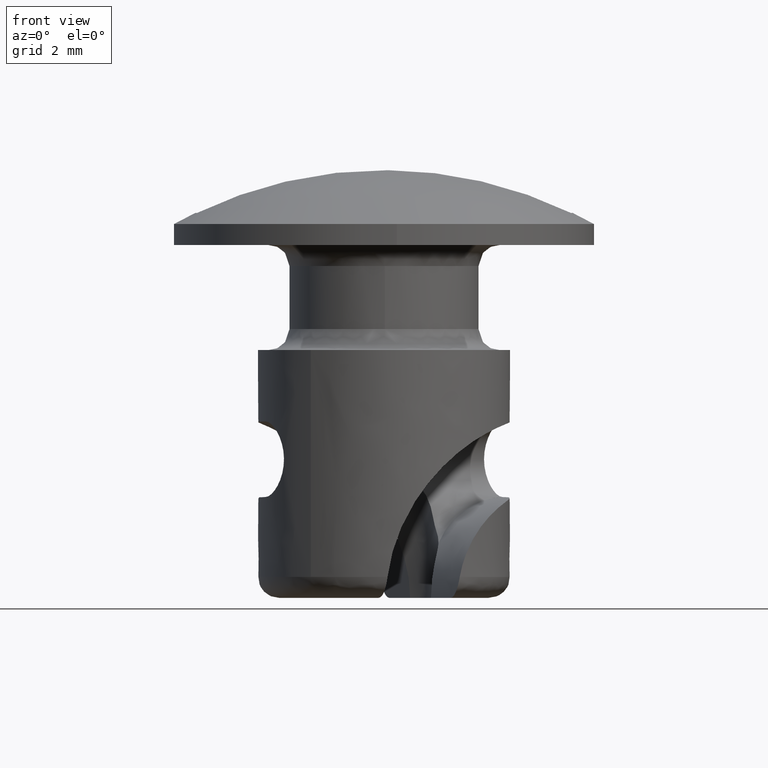
[diagram: clean part render]
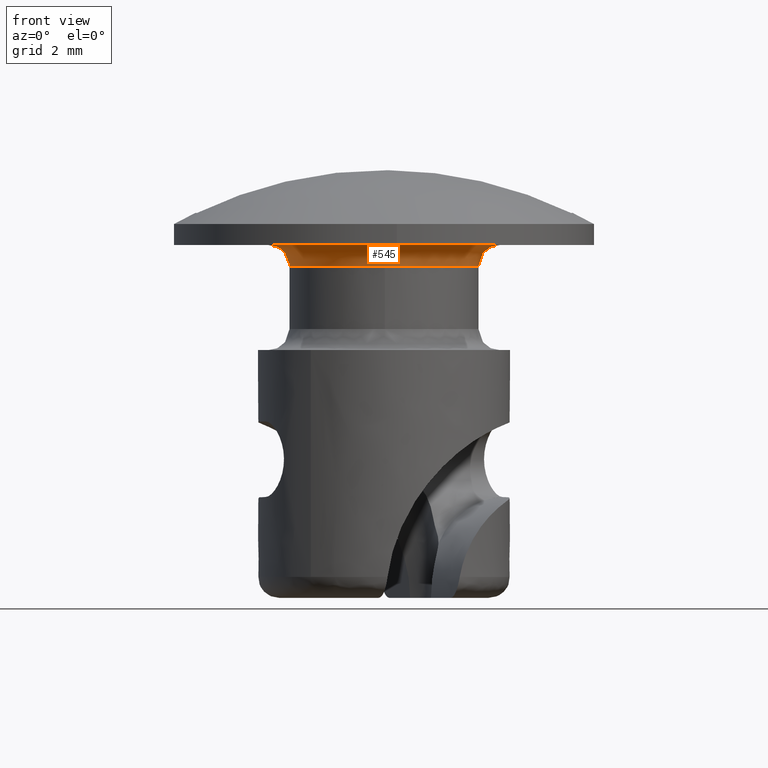
[diagram: same view with one face highlighted and labeled with its STEP entity id]
A machine part, front view. The second image highlights one B-rep face of the part: STEP entity #545.
In plain terms, the highlighted face is a freeform B-spline surface patch.
Its self-contained STEP definition (entity closure, byte-faithful):
#348=CARTESIAN_POINT('',(-2.749782871351383,-0.034556609716116,5.452264E-014));
#349=VERTEX_POINT('',#348);
#363=CARTESIAN_POINT('',(2.750000000000000,0.0,0.0));
#364=VERTEX_POINT('',#363);
#365=CARTESIAN_POINT('',(-2.749782871351383,-0.034556609716116,5.452264E-014));
#366=CARTESIAN_POINT('',(-2.747420056101725,-0.225014174416860,5.071558E-014));
#367=CARTESIAN_POINT('',(-2.714651134649410,-0.504714472653157,4.512334E-014));
#368=CARTESIAN_POINT('',(-2.619155079379021,-0.850742891527095,3.820252E-014));
#369=CARTESIAN_POINT('',(-2.522132480036099,-1.107797745783278,3.306008E-014));
#370=CARTESIAN_POINT('',(-2.379635880185712,-1.394163242664831,2.732974E-014));
#371=CARTESIAN_POINT('',(-2.197522764961495,-1.664307833893839,2.192187E-014));
#372=CARTESIAN_POINT('',(-1.970268977859897,-1.927459384204439,1.665178E-014));
#373=CARTESIAN_POINT('',(-1.721976810785145,-2.155256687721138,1.208739E-014));
#374=CARTESIAN_POINT('',(-1.389435642238185,-2.385140107442391,7.477930E-015));
#375=CARTESIAN_POINT('',(-1.015811813388871,-2.567995209086606,3.805261E-015));
#376=CARTESIAN_POINT('',(-0.634271866243625,-2.684432764546480,1.468380E-015));
#377=CARTESIAN_POINT('',(-0.229978288122025,-2.750424995330303,8.960720E-017));
#378=CARTESIAN_POINT('',(0.158035508685496,-2.756286744665119,1.254827E-016));
#379=CARTESIAN_POINT('',(0.519467587515986,-2.706196495024674,9.457377E-017));
#380=CARTESIAN_POINT('',(0.802184062647177,-2.634703183979466,8.868052E-017));
#381=CARTESIAN_POINT('',(1.066346407864200,-2.540544070734931,7.550780E-017));
#382=CARTESIAN_POINT('',(1.369617344435729,-2.394294058045817,6.198688E-017));
#383=CARTESIAN_POINT('',(1.646201866888808,-2.211577183916244,4.965283E-017));
#384=CARTESIAN_POINT('',(1.893701368759696,-2.000530306870573,3.859795E-017));
#385=CARTESIAN_POINT('',(2.134348779510044,-1.749345429555360,2.783767E-017));
#386=CARTESIAN_POINT('',(2.369731514136269,-1.419847306109899,1.728913E-017));
#387=CARTESIAN_POINT('',(2.557488799610005,-1.036337379110098,8.841278E-018));
#388=CARTESIAN_POINT('',(2.674571243514839,-0.672927820079381,3.538635E-018));
#389=CARTESIAN_POINT('',(2.736975959346938,-0.330522818586217,6.708296E-019));
#390=CARTESIAN_POINT('',(2.750001884729610,-0.106439712331004,2.962619E-020));
#391=CARTESIAN_POINT('',(2.750000000000000,0.0,0.0));
#392=B_SPLINE_CURVE_WITH_KNOTS('',3,(#365,#366,#367,#368,#369,#370,#371,#372,#373,#374,#375,#376,#377,#378,#379,#380,#381,#382,#383,#384,#385,#386,#387,#388,#389,#390,#391),.UNSPECIFIED.,.F.,.U.,(4,1,1,1,1,1,1,1,1,1,1,1,1,1,1,1,1,1,1,1,1,1,1,1,4),(0.000000011276605,0.571408536833601,0.840310488371967,1.075602872460784,1.394923563526935,1.798275021028522,2.050370947917886,2.436917991782169,2.806658511900636,3.260427450558669,3.680590022198632,3.999909486152245,4.487284464008011,4.840213666349777,5.092314414872952,5.361215777219254,5.680536062079659,6.100692798318059,6.352788645974297,6.655303682886378,7.142686921309122,7.562844898225489,7.932584653592780,8.285516049412955,8.604835668678740),.UNSPECIFIED.);
#393=EDGE_CURVE('',#349,#364,#392,.T.);
#395=CARTESIAN_POINT('',(2.749782871351383,0.034556609716116,2.739134E-014));
#396=VERTEX_POINT('',#395);
#397=CARTESIAN_POINT('',(2.750000000000000,0.0,0.0));
#398=CARTESIAN_POINT('',(2.749999999895693,0.017278986996147,1.369567E-014));
#399=CARTESIAN_POINT('',(2.749782871351382,0.034556609716116,2.739134E-014));
#407=(BOUNDED_CURVE()B_SPLINE_CURVE(2,(#397,#398,#399),.UNSPECIFIED.,.F.,.U.)B_SPLINE_CURVE_WITH_KNOTS((3,3),(0.500000000000000,0.502215704080799),.UNSPECIFIED.)CURVE()GEOMETRIC_REPRESENTATION_ITEM()RATIONAL_B_SPLINE_CURVE((1.0,0.997404141199346,0.994854295638195))REPRESENTATION_ITEM(''));
#408=EDGE_CURVE('',#364,#396,#407,.T.);
#443=CARTESIAN_POINT('',(2.251032571150834,0.028288798632427,-0.534768554556568));
#444=CARTESIAN_POINT('',(2.279321369783262,-2.222743772518409,-0.534768554556568));
#445=CARTESIAN_POINT('',(0.028288798632427,-2.251032571150834,-0.534768554556568));
#446=CARTESIAN_POINT('',(-2.222743772518409,-2.279321369783262,-0.534768554556568));
#447=CARTESIAN_POINT('',(-2.251032571150834,-0.028288798632427,-0.534768554556568));
#448=CARTESIAN_POINT('',(2.211056838643848,0.027786422317856,0.038768587008932));
#449=CARTESIAN_POINT('',(2.238843260961703,-2.183270416325992,0.038768587008932));
#450=CARTESIAN_POINT('',(0.027786422317856,-2.211056838643848,0.038768587008932));
#451=CARTESIAN_POINT('',(-2.183270416325992,-2.238843260961704,0.038768587008932));
#452=CARTESIAN_POINT('',(-2.211056838643848,-0.027786422317856,0.038768587008932));
#453=CARTESIAN_POINT('',(2.784548695000571,0.034993512899187,-0.001210318234063));
#454=CARTESIAN_POINT('',(2.819542207899759,-2.749555182101385,-0.001210318234063));
#455=CARTESIAN_POINT('',(0.034993512899188,-2.784548695000571,-0.001210318234063));
#456=CARTESIAN_POINT('',(-2.749555182101383,-2.819542207899759,-0.001210318234063));
#457=CARTESIAN_POINT('',(-2.784548695000571,-0.034993512899188,-0.001210318234063));
#465=(BOUNDED_SURFACE()B_SPLINE_SURFACE(2,2,((#443,#448,#453),(#444,#449,#454),(#445,#450,#455),(#446,#451,#456),(#447,#452,#457)),.UNSPECIFIED.,.F.,.F.,.U.)B_SPLINE_SURFACE_WITH_KNOTS((3,2,3),(3,3),(0.0,4.613955636771016,9.227911273542032),(0.0,0.911186972831271),.UNSPECIFIED.)GEOMETRIC_REPRESENTATION_ITEM()RATIONAL_B_SPLINE_SURFACE(((0.910479795090997,0.597479572841838,0.910479806786608),(0.643806437242182,0.422481857576905,0.643806445512228),(0.910479795090997,0.597479572841838,0.910479806786608),(0.643806437242182,0.422481857576905,0.643806445512228),(0.910479795090997,0.597479572841838,0.910479806786608)))REPRESENTATION_ITEM('')SURFACE());
#466=CARTESIAN_POINT('',(2.249822349458503,0.028273589744125,-0.499999999954499));
#467=VERTEX_POINT('',#466);
#468=CARTESIAN_POINT('',(2.250000000000000,0.0,-0.499999999999945));
#469=VERTEX_POINT('',#468);
#470=CARTESIAN_POINT('',(2.249822349458504,0.028273589744125,-0.499999999954499));
#471=CARTESIAN_POINT('',(2.250000000000000,0.014137352985043,-0.499999999977222));
#472=CARTESIAN_POINT('',(2.250000000000000,0.0,-0.499999999999945));
#480=(BOUNDED_CURVE()B_SPLINE_CURVE(2,(#470,#471,#472),.UNSPECIFIED.,.F.,.U.)B_SPLINE_CURVE_WITH_KNOTS((3,3),(0.497784295921214,0.500000000000000),.UNSPECIFIED.)CURVE()GEOMETRIC_REPRESENTATION_ITEM()RATIONAL_B_SPLINE_CURVE((0.994854295642828,0.997404141201705,1.0))REPRESENTATION_ITEM(''));
#481=EDGE_CURVE('',#467,#469,#480,.T.);
#482=ORIENTED_EDGE('',*,*,#481,.F.);
#483=CARTESIAN_POINT('',(2.249822349458504,0.028273589744125,-0.499999999954499));
#484=CARTESIAN_POINT('',(2.249822349503739,0.028273589761165,-2.085893E-010));
#485=CARTESIAN_POINT('',(2.749782871351383,0.034556609716116,2.739134E-014));
#493=(BOUNDED_CURVE()B_SPLINE_CURVE(2,(#483,#484,#485),.UNSPECIFIED.,.F.,.U.)B_SPLINE_CURVE_WITH_KNOTS((3,3),(-1.725134643188606,-0.274865357146085),.UNSPECIFIED.)CURVE()GEOMETRIC_REPRESENTATION_ITEM()RATIONAL_B_SPLINE_CURVE((0.883342149619803,0.624617224220545,0.883342149500387))REPRESENTATION_ITEM(''));
#494=EDGE_CURVE('',#467,#396,#493,.T.);
#495=ORIENTED_EDGE('',*,*,#494,.T.);
#496=ORIENTED_EDGE('',*,*,#408,.F.);
#497=ORIENTED_EDGE('',*,*,#393,.F.);
#498=CARTESIAN_POINT('',(-2.249822349458503,-0.028273589744126,-0.499999999954499));
#499=VERTEX_POINT('',#498);
#500=CARTESIAN_POINT('',(-2.249822349458503,-0.028273589744126,-0.499999999954499));
#501=CARTESIAN_POINT('',(-2.249822349503737,-0.028273589761165,-2.085756E-010));
#502=CARTESIAN_POINT('',(-2.749782871351383,-0.034556609716116,5.452264E-014));
#510=(BOUNDED_CURVE()B_SPLINE_CURVE(2,(#500,#501,#502),.UNSPECIFIED.,.F.,.U.)B_SPLINE_CURVE_WITH_KNOTS((3,3),(-1.725134643188606,-0.274865357146084),.UNSPECIFIED.)CURVE()GEOMETRIC_REPRESENTATION_ITEM()RATIONAL_B_SPLINE_CURVE((0.883342149619803,0.624617224220545,0.883342149500387))REPRESENTATION_ITEM(''));
#511=EDGE_CURVE('',#499,#349,#510,.T.);
#512=ORIENTED_EDGE('',*,*,#511,.F.);
#513=CARTESIAN_POINT('',(0.019633587222252,-2.249914336647406,-0.499999999977278));
#514=VERTEX_POINT('',#513);
#515=CARTESIAN_POINT('',(0.019633587222252,-2.249914336647405,-0.499999999977278));
#516=CARTESIAN_POINT('',(0.009816980490115,-2.249999999999722,-0.499999999977178));
#517=CARTESIAN_POINT('',(-2.360291E-015,-2.249999999999723,-0.499999999977079));
#518=CARTESIAN_POINT('',(-2.221901842284958,-2.249999999999863,-0.499999999954640));
#519=CARTESIAN_POINT('',(-2.249822349458504,-0.028273589744126,-0.499999999954499));
#527=(BOUNDED_CURVE()B_SPLINE_CURVE(2,(#515,#516,#517,#518,#519),.UNSPECIFIED.,.F.,.U.)B_SPLINE_CURVE_WITH_KNOTS((3,2,3),(0.748460193164272,0.750000000000000,0.997784295921214),.UNSPECIFIED.)CURVE()GEOMETRIC_REPRESENTATION_ITEM()RATIONAL_B_SPLINE_CURVE((0.996414230598277,0.998196004078130,1.0,0.709702639984843,0.994854295642828))REPRESENTATION_ITEM(''));
#528=EDGE_CURVE('',#514,#499,#527,.T.);
#529=ORIENTED_EDGE('',*,*,#528,.F.);
#530=CARTESIAN_POINT('',(2.250000000000000,0.0,-0.499999999999945));
#531=CARTESIAN_POINT('',(2.249999999999999,-2.230451331861282,-0.499999999999803));
#532=CARTESIAN_POINT('',(0.019633587222252,-2.249914336647405,-0.499999999977278));
#540=(BOUNDED_CURVE()B_SPLINE_CURVE(2,(#530,#531,#532),.UNSPECIFIED.,.F.,.U.)B_SPLINE_CURVE_WITH_KNOTS((3,3),(0.500000000000000,0.748460193164272),.UNSPECIFIED.)CURVE()GEOMETRIC_REPRESENTATION_ITEM()RATIONAL_B_SPLINE_CURVE((1.0,0.708910777108417,0.996414230598277))REPRESENTATION_ITEM(''));
#541=EDGE_CURVE('',#469,#514,#540,.T.);
#542=ORIENTED_EDGE('',*,*,#541,.F.);
#543=EDGE_LOOP('',(#482,#495,#496,#497,#512,#529,#542));
#544=FACE_OUTER_BOUND('',#543,.T.);
#545=ADVANCED_FACE('',(#544),#465,.F.);